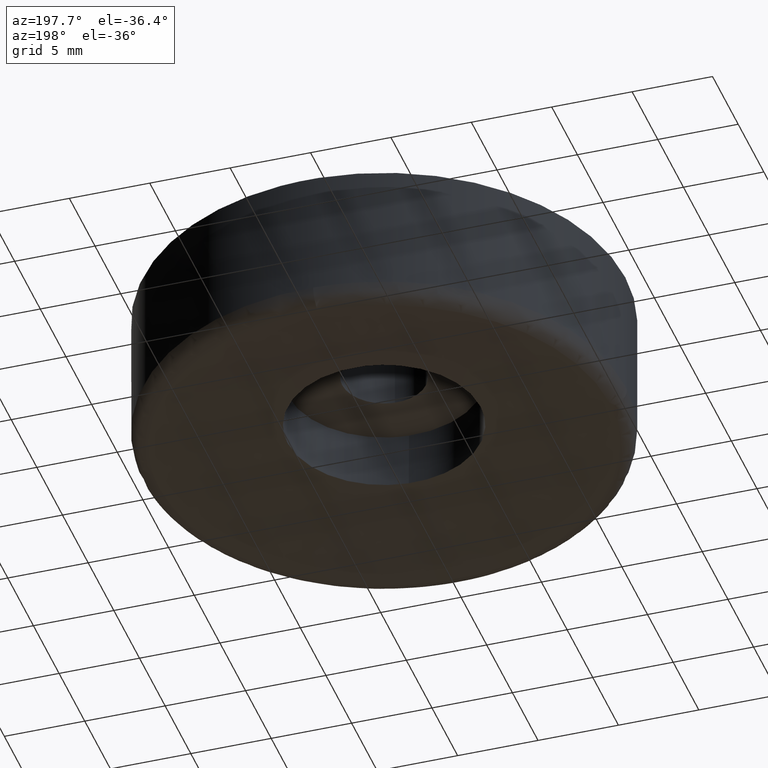
[diagram: clean part render]
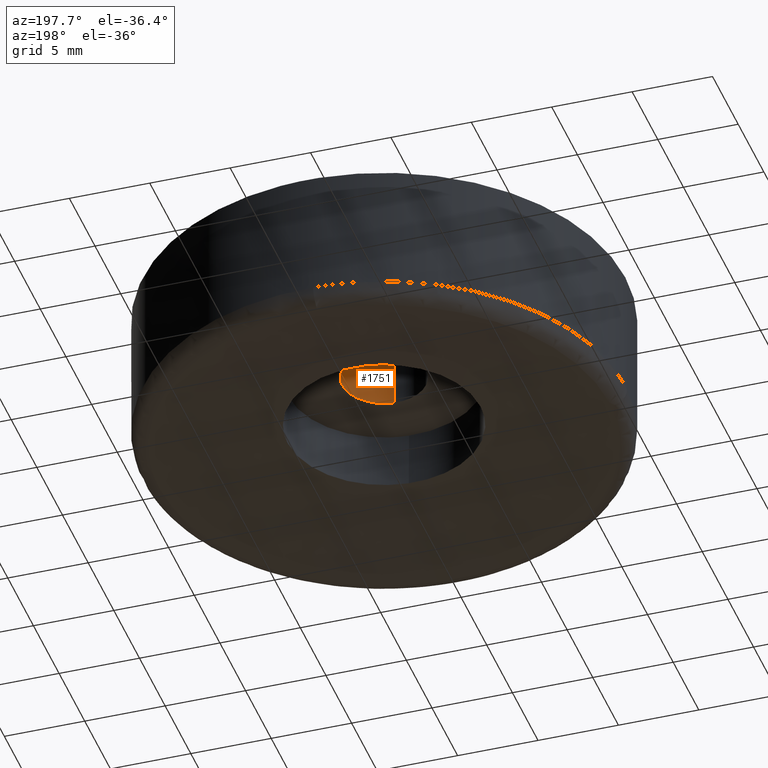
[diagram: same view with one face highlighted and labeled with its STEP entity id]
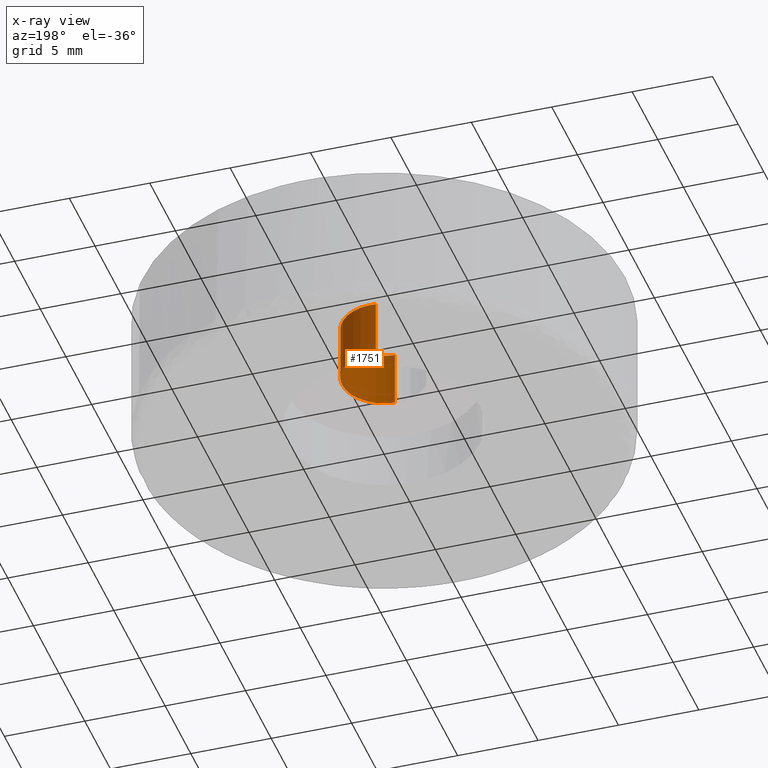
[diagram: x-ray of the same camera — body ghosted, the highlighted face saturated]
A machine part, auxiliary view. The second image highlights one B-rep face of the part: STEP entity #1751.
The next image is the same camera in x-ray: the body ghosted, the highlighted face saturated — about 55% of this face is hidden behind the body in this view.
In plain terms, the highlighted face is a freeform B-spline surface patch.
Its self-contained STEP definition (entity closure, byte-faithful):
#1649=CARTESIAN_POINT('',(-0.306889010107572,2.581824768545533,8.587499999999904));
#1650=CARTESIAN_POINT('',(-0.232998294458742,2.590607800166375,8.587499999999901));
#1651=CARTESIAN_POINT('',(-0.158726202790628,2.595150475896853,8.587499999999903));
#1652=CARTESIAN_POINT('',(2.436424273106225,2.753876678687481,8.587499999999904));
#1653=CARTESIAN_POINT('',(2.595150475896853,0.158726202790628,8.587499999999903));
#1654=CARTESIAN_POINT('',(2.753876678687481,-2.436424273106225,8.587499999999904));
#1655=CARTESIAN_POINT('',(0.158726202790628,-2.595150475896853,8.587499999999903));
#1656=CARTESIAN_POINT('',(-0.306889010107572,2.581824768545533,4.910312499999797));
#1657=CARTESIAN_POINT('',(-0.232998294458742,2.590607800166375,4.910312499999797));
#1658=CARTESIAN_POINT('',(-0.158726202790628,2.595150475896853,4.910312499999797));
#1659=CARTESIAN_POINT('',(2.436424273106225,2.753876678687481,4.910312499999796));
#1660=CARTESIAN_POINT('',(2.595150475896853,0.158726202790628,4.910312499999797));
#1661=CARTESIAN_POINT('',(2.753876678687481,-2.436424273106225,4.910312499999796));
#1662=CARTESIAN_POINT('',(0.158726202790628,-2.595150475896853,4.910312499999797));
#1670=(BOUNDED_SURFACE()B_SPLINE_SURFACE(2,1,((#1649,#1656),(#1650,#1657),(#1651,#1658),(#1652,#1659),(#1653,#1660),(#1654,#1661),(#1655,#1662)),.UNSPECIFIED.,.F.,.F.,.U.)B_SPLINE_SURFACE_WITH_KNOTS((3,2,2,3),(2,2),(0.0,0.172312841947208,4.480133890627395,8.787954939307582),(0.0,3.677187500000107),.UNSPECIFIED.)GEOMETRIC_REPRESENTATION_ITEM()RATIONAL_B_SPLINE_SURFACE(((0.977505800795127,0.977505800795127),(0.988284271247462,0.988284271247462),(1.0,1.0),(0.707106781186548,0.707106781186548),(1.0,1.0),(0.707106781186548,0.707106781186548),(1.0,1.0)))REPRESENTATION_ITEM('')SURFACE());
#1671=CARTESIAN_POINT('',(-0.306886088124188,2.581825115864197,8.499999999999940));
#1672=VERTEX_POINT('',#1671);
#1673=CARTESIAN_POINT('',(2.600000000000000,0.0,8.499999999999901));
#1674=VERTEX_POINT('',#1673);
#1675=CARTESIAN_POINT('',(-0.306886088124188,2.581825115864196,8.499999999999940));
#1676=CARTESIAN_POINT('',(-0.153981234658105,2.600000000000001,8.499999999999899));
#1677=CARTESIAN_POINT('',(0.0,2.600000000000000,8.499999999999901));
#1678=CARTESIAN_POINT('',(2.600000000000001,2.600000000000001,8.499999999999901));
#1679=CARTESIAN_POINT('',(2.600000000000000,0.0,8.499999999999901));
#1687=(BOUNDED_CURVE()B_SPLINE_CURVE(2,(#1675,#1676,#1677,#1678,#1679),.UNSPECIFIED.,.F.,.U.)B_SPLINE_CURVE_WITH_KNOTS((3,2,3),(0.229562664785294,0.250000000000000,0.500000000000000),.UNSPECIFIED.)CURVE()GEOMETRIC_REPRESENTATION_ITEM()RATIONAL_B_SPLINE_CURVE((0.956027129084570,0.976056172419981,1.0,0.707106781186548,1.0))REPRESENTATION_ITEM(''));
#1688=EDGE_CURVE('',#1672,#1674,#1687,.T.);
#1689=ORIENTED_EDGE('',*,*,#1688,.F.);
#1690=CARTESIAN_POINT('',(-0.306886123398112,2.581825111671437,4.999999999999801));
#1691=VERTEX_POINT('',#1690);
#1692=CARTESIAN_POINT('',(-0.306886088124188,2.581825115864197,8.499999999999940));
#1693=CARTESIAN_POINT('',(-0.306886123398112,2.581825111671437,4.999999999999801));
#1694=QUASI_UNIFORM_CURVE('',1,(#1692,#1693),.UNSPECIFIED.,.F.,.U.);
#1695=EDGE_CURVE('',#1672,#1691,#1694,.T.);
#1696=ORIENTED_EDGE('',*,*,#1695,.T.);
#1697=CARTESIAN_POINT('',(2.600000000000000,0.0,4.999999999999800));
#1698=VERTEX_POINT('',#1697);
#1699=CARTESIAN_POINT('',(-0.306886123398112,2.581825111671437,4.999999999999801));
#1700=CARTESIAN_POINT('',(-0.153981252481516,2.600000000000000,4.999999999999800));
#1701=CARTESIAN_POINT('',(0.0,2.600000000000000,4.999999999999800));
#1702=CARTESIAN_POINT('',(2.600000000000001,2.600000000000001,4.999999999999801));
#1703=CARTESIAN_POINT('',(2.600000000000000,0.0,4.999999999999800));
#1711=(BOUNDED_CURVE()B_SPLINE_CURVE(2,(#1699,#1700,#1701,#1702,#1703),.UNSPECIFIED.,.F.,.U.)B_SPLINE_CURVE_WITH_KNOTS((3,2,3),(0.229562662476304,0.250000000000000,0.500000000000000),.UNSPECIFIED.)CURVE()GEOMETRIC_REPRESENTATION_ITEM()RATIONAL_B_SPLINE_CURVE((0.956027124558846,0.976056169714831,1.0,0.707106781186548,1.0))REPRESENTATION_ITEM(''));
#1712=EDGE_CURVE('',#1691,#1698,#1711,.T.);
#1713=ORIENTED_EDGE('',*,*,#1712,.T.);
#1714=CARTESIAN_POINT('',(0.158726202832255,-2.595150475894308,4.999999999999800));
#1715=VERTEX_POINT('',#1714);
#1716=CARTESIAN_POINT('',(2.600000000000000,0.0,4.999999999999800));
#1717=CARTESIAN_POINT('',(2.600000000000001,-2.445835773876209,4.999999999999799));
#1718=CARTESIAN_POINT('',(0.158726202832255,-2.595150475894308,4.999999999999800));
#1726=(BOUNDED_CURVE()B_SPLINE_CURVE(2,(#1716,#1717,#1718),.UNSPECIFIED.,.F.,.U.)B_SPLINE_CURVE_WITH_KNOTS((3,3),(0.500000000000000,0.739332962236434),.UNSPECIFIED.)CURVE()GEOMETRIC_REPRESENTATION_ITEM()RATIONAL_B_SPLINE_CURVE((1.0,0.719603993289650,0.976072041661340))REPRESENTATION_ITEM(''));
#1727=EDGE_CURVE('',#1698,#1715,#1726,.T.);
#1728=ORIENTED_EDGE('',*,*,#1727,.T.);
#1729=CARTESIAN_POINT('',(0.158726202832254,-2.595150475894308,8.499999999999897));
#1730=VERTEX_POINT('',#1729);
#1731=CARTESIAN_POINT('',(0.158726202832254,-2.595150475894308,8.499999999999897));
#1732=CARTESIAN_POINT('',(0.158726202832255,-2.595150475894308,4.999999999999800));
#1733=QUASI_UNIFORM_CURVE('',1,(#1731,#1732),.UNSPECIFIED.,.F.,.U.);
#1734=EDGE_CURVE('',#1730,#1715,#1733,.T.);
#1735=ORIENTED_EDGE('',*,*,#1734,.F.);
#1736=CARTESIAN_POINT('',(2.600000000000000,0.0,8.499999999999901));
#1737=CARTESIAN_POINT('',(2.600000000000001,-2.445835773876209,8.499999999999901));
#1738=CARTESIAN_POINT('',(0.158726202832254,-2.595150475894308,8.499999999999897));
#1746=(BOUNDED_CURVE()B_SPLINE_CURVE(2,(#1736,#1737,#1738),.UNSPECIFIED.,.F.,.U.)B_SPLINE_CURVE_WITH_KNOTS((3,3),(0.500000000000000,0.739332962236434),.UNSPECIFIED.)CURVE()GEOMETRIC_REPRESENTATION_ITEM()RATIONAL_B_SPLINE_CURVE((1.0,0.719603993289650,0.976072041661340))REPRESENTATION_ITEM(''));
#1747=EDGE_CURVE('',#1674,#1730,#1746,.T.);
#1748=ORIENTED_EDGE('',*,*,#1747,.F.);
#1749=EDGE_LOOP('',(#1689,#1696,#1713,#1728,#1735,#1748));
#1750=FACE_OUTER_BOUND('',#1749,.T.);
#1751=ADVANCED_FACE('',(#1750),#1670,.F.);